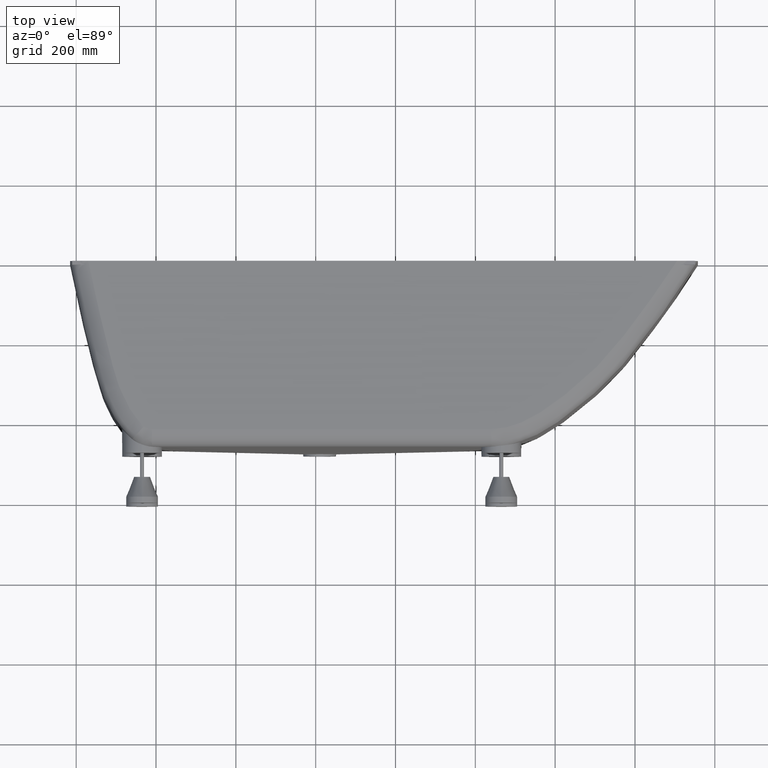
[diagram: clean part render]
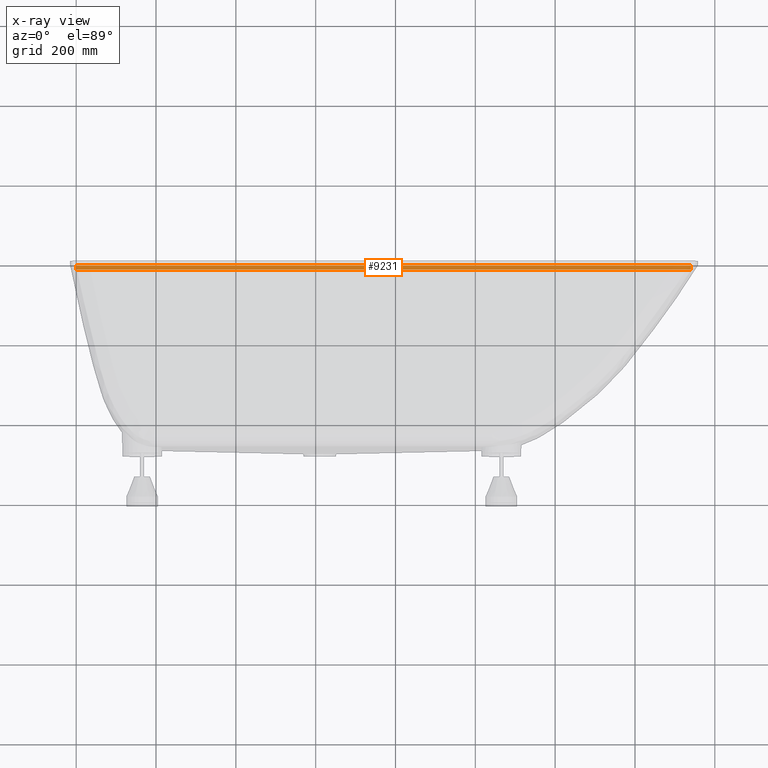
[diagram: x-ray — body ghosted, one internal face saturated and labeled with its STEP entity id]
A machine part, top view, then the same camera in x-ray: the body is ghosted and one INTERNAL B-rep face — a face not visible from any outside direction — is saturated and labeled: STEP entity #9231.
In plain terms, the highlighted planar face has unit normal (0, 0, -1).
Its self-contained STEP definition (entity closure, byte-faithful):
#146 = CARTESIAN_POINT ( 'NONE',  ( 1540.000000000000000, -10.00000000000000000, -5.551115123125782700E-014 ) ) ;
#886 = CARTESIAN_POINT ( 'NONE',  ( 5.350741006222080700E-014, -10.00000000000000000, -5.551115123125782700E-014 ) ) ;
#1030 = EDGE_CURVE ( 'NONE', #11833, #5676, #4191, .T. ) ;
#1104 = DIRECTION ( 'NONE',  ( -1.000000000000000000, -0.0000000000000000000, -0.0000000000000000000 ) ) ;
#1289 = DIRECTION ( 'NONE',  ( -1.000000000000000000, -0.0000000000000000000, -0.0000000000000000000 ) ) ;
#1305 = CARTESIAN_POINT ( 'NONE',  ( 5.350741006222080700E-014, 0.0000000000000000000, -5.551115123125782700E-014 ) ) ;
#1476 = ORIENTED_EDGE ( 'NONE', *, *, #10437, .T. ) ;
#2305 = PLANE ( 'NONE',  #8653 ) ;
#2426 = VECTOR ( 'NONE', #9142, 1000.000000000000000 ) ;
#2455 = EDGE_LOOP ( 'NONE', ( #1476, #5720, #6169, #11914 ) ) ;
#2841 = CARTESIAN_POINT ( 'NONE',  ( 5.350741006222080700E-014, 0.0000000000000000000, -5.551115123125782700E-014 ) ) ;
#2958 = VERTEX_POINT ( 'NONE', #3421 ) ;
#3421 = CARTESIAN_POINT ( 'NONE',  ( 1540.000000000000000, 0.0000000000000000000, -5.551115123125782700E-014 ) ) ;
#4191 = LINE ( 'NONE', #886, #6782 ) ;
#5676 = VERTEX_POINT ( 'NONE', #10337 ) ;
#5720 = ORIENTED_EDGE ( 'NONE', *, *, #7774, .F. ) ;
#6169 = ORIENTED_EDGE ( 'NONE', *, *, #1030, .F. ) ;
#6284 = VERTEX_POINT ( 'NONE', #2841 ) ;
#6306 = CARTESIAN_POINT ( 'NONE',  ( 5.350741006222080700E-014, -10.00000000000000000, -5.551115123125782700E-014 ) ) ;
#6327 = VECTOR ( 'NONE', #7927, 1000.000000000000000 ) ;
#6627 = LINE ( 'NONE', #7969, #6327 ) ;
#6782 = VECTOR ( 'NONE', #1104, 1000.000000000000000 ) ;
#7191 = FACE_OUTER_BOUND ( 'NONE', #2455, .T. ) ;
#7774 = EDGE_CURVE ( 'NONE', #5676, #6284, #6627, .T. ) ;
#7927 = DIRECTION ( 'NONE',  ( 0.0000000000000000000, 1.000000000000000000, 0.0000000000000000000 ) ) ;
#7969 = CARTESIAN_POINT ( 'NONE',  ( 5.350741006222080700E-014, -10.00000000000000000, -5.551115123125782700E-014 ) ) ;
#8292 = EDGE_CURVE ( 'NONE', #11833, #2958, #12860, .T. ) ;
#8587 = DIRECTION ( 'NONE',  ( -1.000000000000000000, 0.0000000000000000000, -0.0000000000000000000 ) ) ;
#8653 = AXIS2_PLACEMENT_3D ( 'NONE', #6306, #10819, #8587 ) ;
#9072 = CARTESIAN_POINT ( 'NONE',  ( 1540.000000000000000, -10.00000000000000000, -5.551115123125782700E-014 ) ) ;
#9142 = DIRECTION ( 'NONE',  ( 0.0000000000000000000, 1.000000000000000000, 0.0000000000000000000 ) ) ;
#9231 = ADVANCED_FACE ( 'NONE', ( #7191 ), #2305, .F. ) ;
#10337 = CARTESIAN_POINT ( 'NONE',  ( 5.350741006222080700E-014, -10.00000000000000000, -5.551115123125782700E-014 ) ) ;
#10437 = EDGE_CURVE ( 'NONE', #2958, #6284, #12266, .T. ) ;
#10819 = DIRECTION ( 'NONE',  ( 0.0000000000000000000, 0.0000000000000000000, -1.000000000000000000 ) ) ;
#11833 = VERTEX_POINT ( 'NONE', #9072 ) ;
#11914 = ORIENTED_EDGE ( 'NONE', *, *, #8292, .T. ) ;
#11930 = VECTOR ( 'NONE', #1289, 1000.000000000000000 ) ;
#12266 = LINE ( 'NONE', #1305, #11930 ) ;
#12860 = LINE ( 'NONE', #146, #2426 ) ;